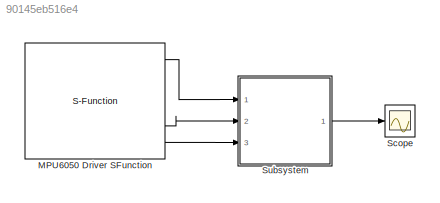
MODEL slx_90145eb516e4
KIND model
CONFIG AbsTol = auto
CONFIG FixedStep = 0.03
CONFIG MaxStep = auto
CONFIG MinStep = auto
CONFIG RelTol = 1e-3
CONFIG SampleTimeConstraint = Unconstrained
CONFIG Solver = ode3
CONFIG SolverMode = Auto
CONFIG SolverName = ode3
CONFIG StartTime = 0.0
CONFIG StopTime = 10.0
BLOCK [S-Function] MPU6050 Driver SFunction
  CopyFcn = set_param(gcbh,'LinkStatus','none')
  FunctionName = sf_MPU6050_Driver
  InitFcn = try, set_param(gcb,'FunctionName','sf_MPU6050_Driver'), end
  OpenFcn = sfunctionwizard(gcbh)
  Ports = [0, 6]
  PreSaveFcn = try, set_param(gcb,'FunctionName','sf_MPU6050_Driver'), end
  SFunctionModules = sf_MPU6050_Driver_wrapper
BLOCK [Scope] Scope
  Floating = off
  NumInputPorts = 1
  Ports = [1]
  TimeRange = 10
  YMax = 5.5
  YMin = -0.5
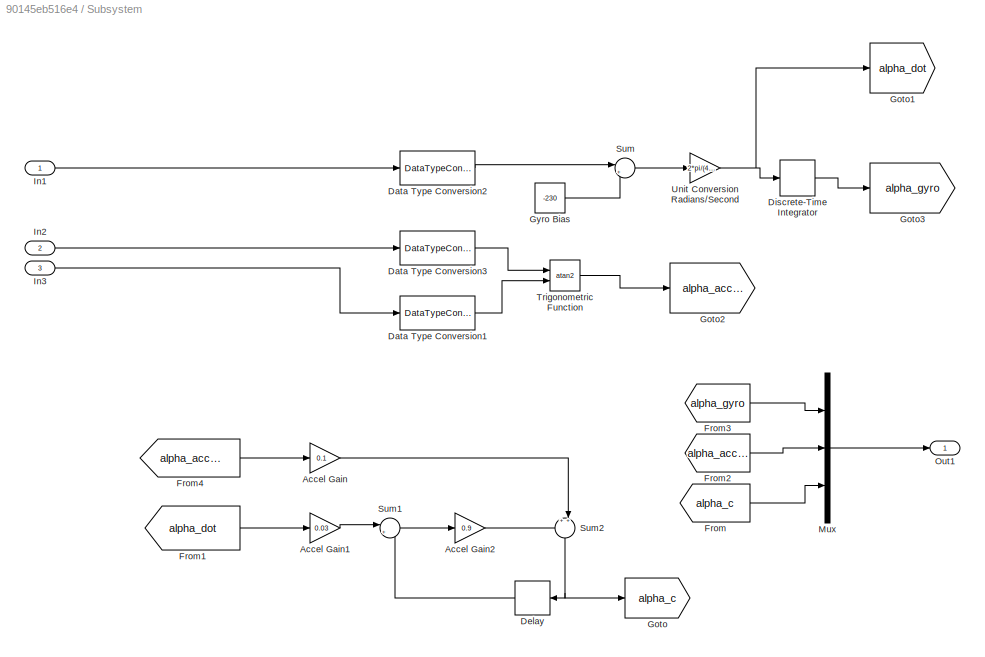
BLOCK [SubSystem] Subsystem
  Ports = [3, 1]
  RequestExecContextInheritance = off
BLOCK [Gain] Subsystem/Accel Gain
  Gain = 0.1
  OutDataTypeStr = Inherit: Inherit via internal rule
  ParamDataTypeStr = Inherit: Inherit via internal rule
  SaturateOnIntegerOverflow = off
BLOCK [Gain] Subsystem/Accel Gain1
  Gain = 0.03
  OutDataTypeStr = Inherit: Inherit via internal rule
  ParamDataTypeStr = Inherit: Inherit via internal rule
  SaturateOnIntegerOverflow = off
BLOCK [Gain] Subsystem/Accel Gain2
  Gain = 0.9
  OutDataTypeStr = Inherit: Inherit via internal rule
  ParamDataTypeStr = Inherit: Inherit via internal rule
  SaturateOnIntegerOverflow = off
BLOCK [DataTypeConversion] Subsystem/Data Type Conversion1
  OutDataTypeStr = double
  RndMeth = Floor
  SaturateOnIntegerOverflow = off
BLOCK [DataTypeConversion] Subsystem/Data Type Conversion2
  OutDataTypeStr = double
  RndMeth = Floor
  SaturateOnIntegerOverflow = off
BLOCK [DataTypeConversion] Subsystem/Data Type Conversion3
  OutDataTypeStr = double
  RndMeth = Floor
  SaturateOnIntegerOverflow = off
BLOCK [Delay] Subsystem/Delay
  DelayLength = 1
  InitialCondition = 0
  InputPortMap = u0
  Ports = [1, 1]
BLOCK [DiscreteIntegrator] Subsystem/Discrete-Time Integrator
  InitialConditionSetting = State (most efficient)
  Ports = [1, 1]
  SampleTime = -1
BLOCK [From] Subsystem/From
  GotoTag = alpha_c
BLOCK [From] Subsystem/From1
  GotoTag = alpha_dot
BLOCK [From] Subsystem/From2
  GotoTag = alpha_accel
BLOCK [From] Subsystem/From3
  GotoTag = alpha_gyro
BLOCK [From] Subsystem/From4
  GotoTag = alpha_accel
BLOCK [Goto] Subsystem/Goto
  GotoTag = alpha_c
BLOCK [Goto] Subsystem/Goto1
  GotoTag = alpha_dot
BLOCK [Goto] Subsystem/Goto2
  GotoTag = alpha_accel
BLOCK [Goto] Subsystem/Goto3
  GotoTag = alpha_gyro
BLOCK [Constant] Subsystem/Gyro Bias
  Value = -230
BLOCK [Inport] Subsystem/In1
  IconDisplay = Port number
BLOCK [Inport] Subsystem/In2
  IconDisplay = Port number
  Port = 2
BLOCK [Inport] Subsystem/In3
  IconDisplay = Port number
  Port = 3
BLOCK [Mux] Subsystem/Mux
  DisplayOption = bar
  Inputs = 3
  Ports = [3, 1]
BLOCK [Outport] Subsystem/Out1
  IconDisplay = Port number
BLOCK [Sum] Subsystem/Sum
  IconShape = round
  InputSameDT = off
  Inputs = |+-
  OutDataTypeStr = Inherit: Inherit via internal rule
  Ports = [2, 1]
  SaturateOnIntegerOverflow = off
BLOCK [Sum] Subsystem/Sum1
  IconShape = round
  InputSameDT = off
  Inputs = |++
  OutDataTypeStr = Inherit: Inherit via internal rule
  Ports = [2, 1]
  SaturateOnIntegerOverflow = off
BLOCK [Sum] Subsystem/Sum2
  IconShape = round
  InputSameDT = off
  Inputs = ++|
  OutDataTypeStr = Inherit: Inherit via internal rule
  Ports = [2, 1]
  SaturateOnIntegerOverflow = off
BLOCK [Trigonometry] Subsystem/Trigonometric Function
  Operator = atan2
  Ports = [2, 1]
BLOCK [Gain] Subsystem/Unit Conversion Radians//Second
  Gain = 2*pi/(4.5053e+04)
  OutDataTypeStr = Inherit: Inherit via internal rule
  ParamDataTypeStr = Inherit: Inherit via internal rule
  SaturateOnIntegerOverflow = off
LINE MPU6050 Driver SFunction:1 -> Subsystem:1
LINE MPU6050 Driver SFunction:5 -> Subsystem:2
LINE MPU6050 Driver SFunction:6 -> Subsystem:3
LINE Subsystem/Accel Gain1:1 -> Subsystem/Sum1:1
LINE Subsystem/Accel Gain2:1 -> Subsystem/Sum2:1
LINE Subsystem/Accel Gain:1 -> Subsystem/Sum2:2
LINE Subsystem/Data Type Conversion1:1 -> Subsystem/Trigonometric Function:2
LINE Subsystem/Data Type Conversion2:1 -> Subsystem/Sum:1
LINE Subsystem/Data Type Conversion3:1 -> Subsystem/Trigonometric Function:1
LINE Subsystem/Delay:1 -> Subsystem/Sum1:2
LINE Subsystem/Discrete-Time Integrator:1 -> Subsystem/Goto3:1
LINE Subsystem/From1:1 -> Subsystem/Accel Gain1:1
LINE Subsystem/From2:1 -> Subsystem/Mux:2
LINE Subsystem/From3:1 -> Subsystem/Mux:1
LINE Subsystem/From4:1 -> Subsystem/Accel Gain:1
LINE Subsystem/From:1 -> Subsystem/Mux:3
LINE Subsystem/Gyro Bias:1 -> Subsystem/Sum:2
LINE Subsystem/In1:1 -> Subsystem/Data Type Conversion2:1
LINE Subsystem/In2:1 -> Subsystem/Data Type Conversion3:1
LINE Subsystem/In3:1 -> Subsystem/Data Type Conversion1:1
LINE Subsystem/Mux:1 -> Subsystem/Out1:1
LINE Subsystem/Sum1:1 -> Subsystem/Accel Gain2:1
NET Subsystem/Sum2:1 -> Subsystem/Delay:1, Subsystem/Goto:1
LINE Subsystem/Sum:1 -> Subsystem/Unit Conversion Radians//Second:1
LINE Subsystem/Trigonometric Function:1 -> Subsystem/Goto2:1
NET Subsystem/Unit Conversion Radians//Second:1 -> Subsystem/Discrete-Time Integrator:1, Subsystem/Goto1:1
LINE Subsystem:1 -> Scope:1
note: NET lines group one-source signal fan-out (src -> all destinations, sorted); 1:1 wires keep LINE
